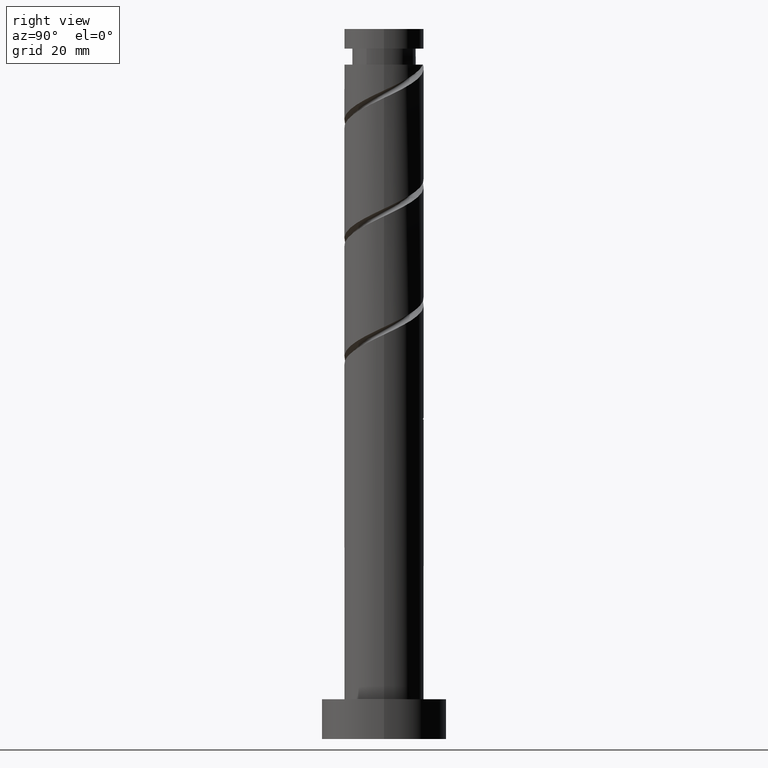
[diagram: clean part render]
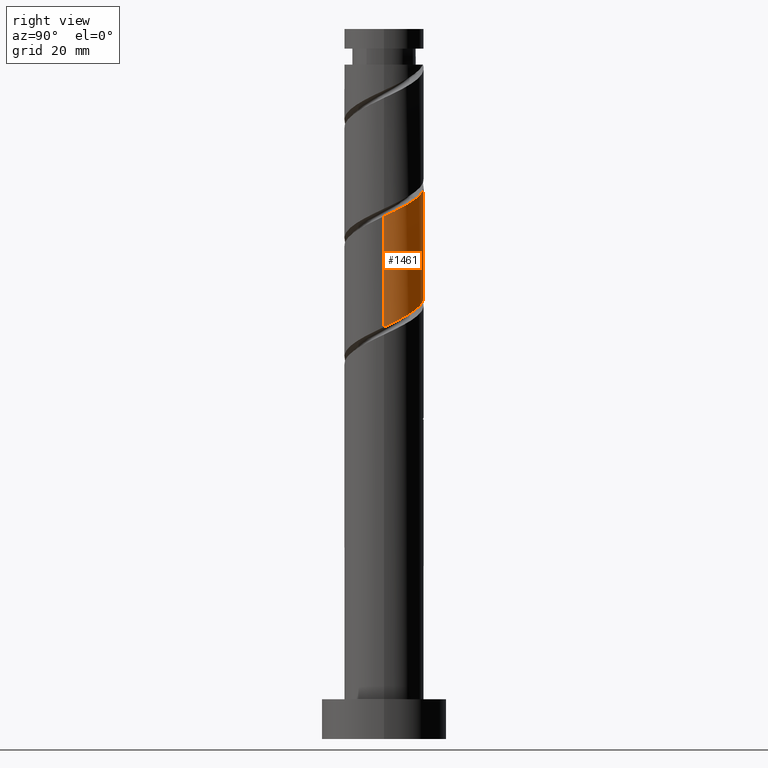
[diagram: same view with one face highlighted and labeled with its STEP entity id]
A machine part, right view. The second image highlights one B-rep face of the part: STEP entity #1461.
In plain terms, the highlighted cylindrical surface (partial cylindrical patch) has radius 7 mm, axis along (-0, -0, -1).
Its self-contained STEP definition (entity closure, byte-faithful):
#37 = CARTESIAN_POINT ( 'NONE',  ( -6.828779140186465924, 1.896568314209449380, 101.5568822883741689 ) ) ;
#53 = CARTESIAN_POINT ( 'NONE',  ( -3.444661581381036175, 6.093792463627037748, 98.95271562170752588 ) ) ;
#57 = CARTESIAN_POINT ( 'NONE',  ( 7.000000000000000888, 8.572527594031474176E-16, 125.0000000000000000 ) ) ;
#84 = CARTESIAN_POINT ( 'NONE',  ( -6.860000000000001208, 1.392982411949268418, 82.28604895504086869 ) ) ;
#117 = DIRECTION ( 'NONE',  ( -0.000000000000000000, -0.000000000000000000, -1.000000000000000000 ) ) ;
#161 = CARTESIAN_POINT ( 'NONE',  ( 7.000000000000009770, 0.7035264706814510216, 92.37221775564508164 ) ) ;
#163 = CARTESIAN_POINT ( 'NONE',  ( 5.908483059530981407, 3.913952458978562365, 74.47354895504085448 ) ) ;
#170 = CARTESIAN_POINT ( 'NONE',  ( -7.000000000000013323, 0.3988161621250283506, 102.2650687576966817 ) ) ;
#185 = CARTESIAN_POINT ( 'NONE',  ( -5.908483059530990289, 3.913952458978570359, 100.5152156217075117 ) ) ;
#220 = ORIENTED_EDGE ( 'NONE', *, *, #756, .T. ) ;
#234 = CARTESIAN_POINT ( 'NONE',  ( -1.896568314209444717, 6.828779140186457042, 78.64021562170752588 ) ) ;
#255 = CARTESIAN_POINT ( 'NONE',  ( 2.905260386594012090, 6.368631099858727218, 95.82771562170752588 ) ) ;
#264 = CARTESIAN_POINT ( 'NONE',  ( 6.093792463627037748, 3.444661581381035731, 93.74438228837419729 ) ) ;
#270 = CARTESIAN_POINT ( 'NONE',  ( 5.548211666952570731, 4.409823490186481010, 94.26521562170752588 ) ) ;
#280 = CARTESIAN_POINT ( 'NONE',  ( 3.444661581381032178, 6.093792463627027978, 76.03604895504085448 ) ) ;
#301 = CARTESIAN_POINT ( 'NONE',  ( -6.639373260301494106, 2.479499672575587788, 81.76521562170751167 ) ) ;
#381 = CARTESIAN_POINT ( 'NONE',  ( 6.639373260301504764, 2.479499672575589564, 93.22354895504085448 ) ) ;
#384 = LINE ( 'NONE', #57, #516 ) ;
#385 = VERTEX_POINT ( 'NONE', #1098 ) ;
#392 = DIRECTION ( 'NONE',  ( -0.000000000000000000, -0.000000000000000000, -1.000000000000000000 ) ) ;
#411 = CARTESIAN_POINT ( 'NONE',  ( -7.000000000000000888, 0.000000000000000000, 125.0000000000000000 ) ) ;
#419 = CARTESIAN_POINT ( 'NONE',  ( -4.409823490186481010, 5.548211666952570731, 99.47354895504084027 ) ) ;
#428 = CARTESIAN_POINT ( 'NONE',  ( 7.000000000000003553, -8.935889258790682024E-15, 72.53418472984446908 ) ) ;
#484 = AXIS2_PLACEMENT_3D ( 'NONE', #587, #117, #844 ) ;
#485 = CARTESIAN_POINT ( 'NONE',  ( 7.000000000000003553, -8.935889258790682024E-15, 72.53418472984446908 ) ) ;
#492 = CARTESIAN_POINT ( 'NONE',  ( 2.479499672575589120, 6.639373260301493218, 76.55688228837418308 ) ) ;
#506 = CARTESIAN_POINT ( 'NONE',  ( -5.159153274858735649, 4.731082062965570323, 99.99438228837419729 ) ) ;
#516 = VECTOR ( 'NONE', #392, 1000.000000000000000 ) ;
#521 = CARTESIAN_POINT ( 'NONE',  ( 4.409823490186476569, 5.548211666952560961, 75.51521562170748325 ) ) ;
#550 = DIRECTION ( 'NONE',  ( -0.000000000000000000, -0.000000000000000000, -1.000000000000000000 ) ) ;
#587 = CARTESIAN_POINT ( 'NONE',  ( 0.000000000000000000, 0.000000000000000000, 125.0000000000000000 ) ) ;
#600 = CARTESIAN_POINT ( 'NONE',  ( -0.7950515814432478345, 6.954702939942481343, 78.11938228837415465 ) ) ;
#636 = CARTESIAN_POINT ( 'NONE',  ( 3.913952458978571247, 5.908483059530990289, 95.30688228837418308 ) ) ;
#698 = CARTESIAN_POINT ( 'NONE',  ( -2.905260386594004096, 6.368631099858720113, 79.16104895504085448 ) ) ;
#717 =( BOUNDED_CURVE ( )  B_SPLINE_CURVE ( 2, ( #1409, #161, #839, #381, #264, #270, #1270, #636, #255, #771, #1132, #743, #887, #1148, #53, #419, #506, #185, #1003, #37, #754, #170, #1012 ),
 .UNSPECIFIED., .F., .T. ) 
 B_SPLINE_CURVE_WITH_KNOTS ( ( 3, 2, 2, 2, 2, 2, 2, 2, 2, 2, 2, 3 ),
 ( 0.4295322023138552492, 0.4375000000000000000, 0.4499999999999999556, 0.4625000000000000222, 0.4749999999999999778, 0.4875000000000000444, 0.5000000000000000000, 0.5124999999999999556, 0.5250000000000000222, 0.5374999999999999778, 0.5500000000000000444, 0.5545322023138552492 ),
 .UNSPECIFIED. ) 
 CURVE ( )  GEOMETRIC_REPRESENTATION_ITEM ( )  RATIONAL_B_SPLINE_CURVE ( ( 0.9039174447099388443, 0.9019565955404682533, 0.9090909090909166101, 0.8978984914501326742, 0.9090909090909166101, 0.8978984914501326742, 0.9090909090909166101, 0.8978984914501326742, 0.9090909090909166101, 0.8978984914501326742, 0.9090909090909166101, 0.8978984914501326742, 0.9090909090909166101, 0.8978984914501326742, 0.9090909090909166101, 0.8978984914501326742, 0.9090909090909166101, 0.8978984914501326742, 0.9090909090909166101, 0.8978984914501326742, 0.9090909090909166101, 0.9050328050005809200, 0.9039174447099388443 ) ) 
 REPRESENTATION_ITEM ( '' )  );
#743 = CARTESIAN_POINT ( 'NONE',  ( -0.3064651513229468272, 7.080626739698518968, 97.39021562170754009 ) ) ;
#754 = CARTESIAN_POINT ( 'NONE',  ( -6.954702939942492002, 0.7950515814432506101, 102.0777156217075401 ) ) ;
#756 = EDGE_CURVE ( 'NONE', #385, #1489, #384, .T. ) ;
#766 = CARTESIAN_POINT ( 'NONE',  ( 6.828779140186457042, 1.896568314209444273, 73.43188228837418308 ) ) ;
#771 = CARTESIAN_POINT ( 'NONE',  ( 1.896568314209450490, 6.828779140186465924, 96.34854895504084027 ) ) ;
#782 = CARTESIAN_POINT ( 'NONE',  ( 6.954702939942483120, 0.7950515814432469464, 72.91104895504085448 ) ) ;
#807 = CARTESIAN_POINT ( 'NONE',  ( -7.000000000000003553, 8.216220325196801826E-15, 82.95085139651111206 ) ) ;
#817 = EDGE_LOOP ( 'NONE', ( #1455, #220, #1110, #1095 ) ) ;
#839 = CARTESIAN_POINT ( 'NONE',  ( 6.860000000000011866, 1.392982411949268418, 92.70271562170752588 ) ) ;
#844 = DIRECTION ( 'NONE',  ( -1.000000000000000000, 0.000000000000000000, 0.000000000000000000 ) ) ;
#847 = CARTESIAN_POINT ( 'NONE',  ( -3.913952458978563698, 5.908483059530980519, 79.68188228837415465 ) ) ;
#859 = VERTEX_POINT ( 'NONE', #807 ) ;
#887 = CARTESIAN_POINT ( 'NONE',  ( -1.392982411949267751, 6.860000000000011866, 97.91104895504086869 ) ) ;
#939 = CARTESIAN_POINT ( 'NONE',  ( -6.093792463627027978, 3.444661581381031290, 81.24438228837419729 ) ) ;
#982 = CARTESIAN_POINT ( 'NONE',  ( 0.3064651513229493252, 7.080626739698509198, 77.59854895504082606 ) ) ;
#1003 = CARTESIAN_POINT ( 'NONE',  ( -6.368631099858728994, 2.905260386594009869, 101.0360489550408118 ) ) ;
#1012 = CARTESIAN_POINT ( 'NONE',  ( -7.000000000000014211, -2.818703323242678643E-15, 102.4545798469039539 ) ) ;
#1034 = CARTESIAN_POINT ( 'NONE',  ( 5.159153274858729432, 4.731082062965559665, 74.99438228837415465 ) ) ;
#1036 = VERTEX_POINT ( 'NONE', #1114 ) ;
#1095 = ORIENTED_EDGE ( 'NONE', *, *, #1166, .F. ) ;
#1098 = CARTESIAN_POINT ( 'NONE',  ( 7.000000000000011546, 5.397517001954066779E-15, 92.03791318023725410 ) ) ;
#1110 = ORIENTED_EDGE ( 'NONE', *, *, #1304, .F. ) ;
#1114 = CARTESIAN_POINT ( 'NONE',  ( -7.000000000000014211, -2.818703323242679038E-15, 102.4545798469039539 ) ) ;
#1132 = CARTESIAN_POINT ( 'NONE',  ( 0.7950515814432523864, 6.954702939942492002, 96.86938228837418308 ) ) ;
#1148 = CARTESIAN_POINT ( 'NONE',  ( -2.479499672575591340, 6.639373260301504764, 98.43188228837419729 ) ) ;
#1150 = CARTESIAN_POINT ( 'NONE',  ( 7.000000000000005329, 0.3988161621250252420, 72.72369581905174130 ) ) ;
#1166 = EDGE_CURVE ( 'NONE', #1036, #859, #1510, .T. ) ;
#1179 = CYLINDRICAL_SURFACE ( 'NONE', #484, 7.000000000000000888 ) ;
#1192 = CARTESIAN_POINT ( 'NONE',  ( -5.548211666952560961, 4.409823490186474793, 80.72354895504084027 ) ) ;
#1199 = CARTESIAN_POINT ( 'NONE',  ( -4.731082062965562329, 5.159153274858727656, 80.20271562170749746 ) ) ;
#1216 = EDGE_CURVE ( 'NONE', #385, #1036, #717, .T. ) ;
#1270 = CARTESIAN_POINT ( 'NONE',  ( 4.731082062965572099, 5.159153274858734761, 94.78604895504086869 ) ) ;
#1281 = CARTESIAN_POINT ( 'NONE',  ( 6.368631099858720113, 2.905260386594003208, 73.95271562170754009 ) ) ;
#1301 = CARTESIAN_POINT ( 'NONE',  ( -7.000000000000002665, 8.216220325196801826E-15, 82.95085139651109785 ) ) ;
#1304 = EDGE_CURVE ( 'NONE', #859, #1489, #1446, .T. ) ;
#1309 = CARTESIAN_POINT ( 'NONE',  ( -6.999999999999999112, 0.7035264706814624569, 82.61654682110328451 ) ) ;
#1336 = FACE_OUTER_BOUND ( 'NONE', #817, .T. ) ;
#1409 = CARTESIAN_POINT ( 'NONE',  ( 7.000000000000011546, 5.397517001954066779E-15, 92.03791318023725410 ) ) ;
#1413 = VECTOR ( 'NONE', #550, 1000.000000000000000 ) ;
#1446 =( BOUNDED_CURVE ( )  B_SPLINE_CURVE ( 2, ( #1301, #1309, #84, #301, #939, #1192, #1199, #847, #698, #234, #600, #982, #1487, #492, #280, #521, #1034, #163, #1281, #766, #782, #1150, #428 ),
 .UNSPECIFIED., .F., .T. ) 
 B_SPLINE_CURVE_WITH_KNOTS ( ( 3, 2, 2, 2, 2, 2, 2, 2, 2, 2, 2, 3 ),
 ( 0.6795322023138553602, 0.6875000000000000000, 0.6999999999999999556, 0.7125000000000000222, 0.7249999999999999778, 0.7375000000000000444, 0.7500000000000000000, 0.7624999999999999556, 0.7750000000000000222, 0.7874999999999999778, 0.8000000000000000444, 0.8045322023138552492 ),
 .UNSPECIFIED. ) 
 CURVE ( )  GEOMETRIC_REPRESENTATION_ITEM ( )  RATIONAL_B_SPLINE_CURVE ( ( 0.9039174447099328491, 0.9019565955404623692, 0.9090909090909106149, 0.8978984914501266790, 0.9090909090909106149, 0.8978984914501266790, 0.9090909090909106149, 0.8978984914501266790, 0.9090909090909106149, 0.8978984914501266790, 0.9090909090909106149, 0.8978984914501266790, 0.9090909090909106149, 0.8978984914501266790, 0.9090909090909106149, 0.8978984914501266790, 0.9090909090909106149, 0.8978984914501266790, 0.9090909090909106149, 0.8978984914501266790, 0.9090909090909106149, 0.9050328050005749247, 0.9039174447099327381 ) ) 
 REPRESENTATION_ITEM ( '' )  );
#1455 = ORIENTED_EDGE ( 'NONE', *, *, #1216, .F. ) ;
#1461 = ADVANCED_FACE ( 'NONE', ( #1336 ), #1179, .T. ) ;
#1487 = CARTESIAN_POINT ( 'NONE',  ( 1.392982411949269750, 6.860000000000001208, 77.07771562170749746 ) ) ;
#1489 = VERTEX_POINT ( 'NONE', #485 ) ;
#1510 = LINE ( 'NONE', #411, #1413 ) ;